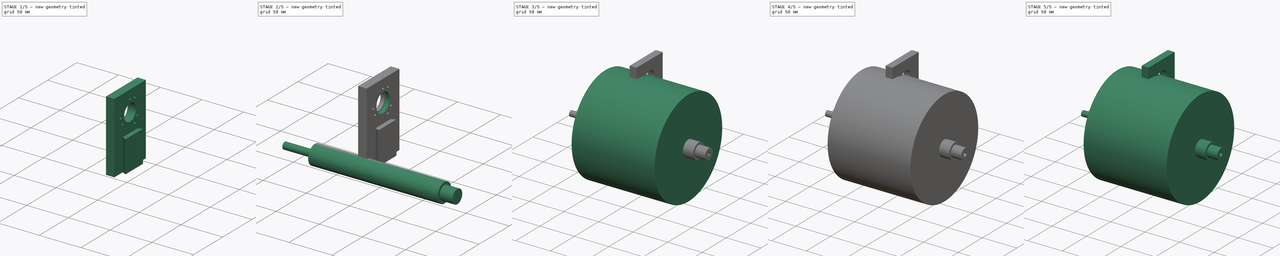
[diagram: build sequence overview — one tinted view per stage of 5, left to right]
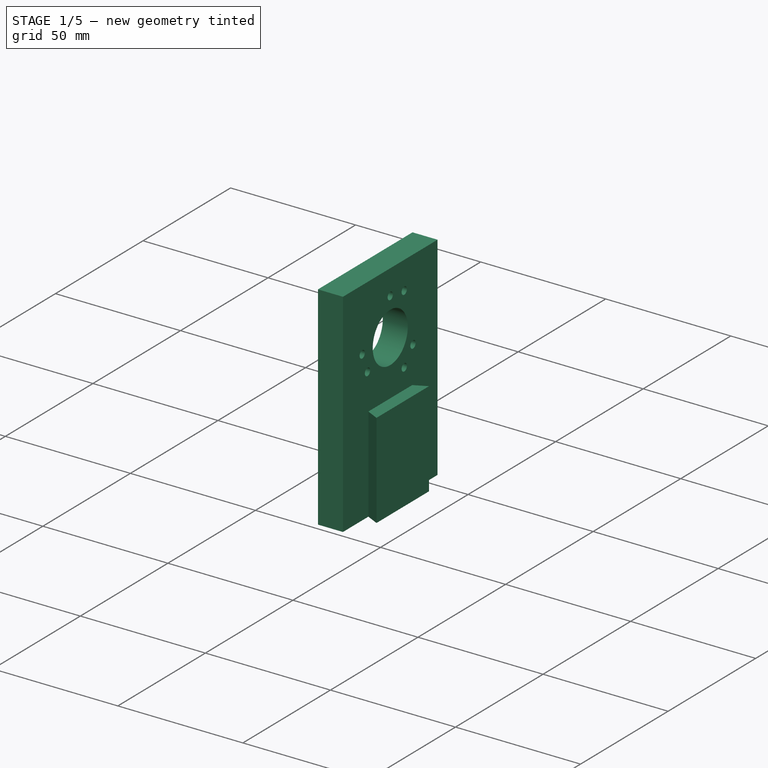
[diagram: stage 1 of 5 — iso view after this stage's code; geometry added in this stage tinted green]
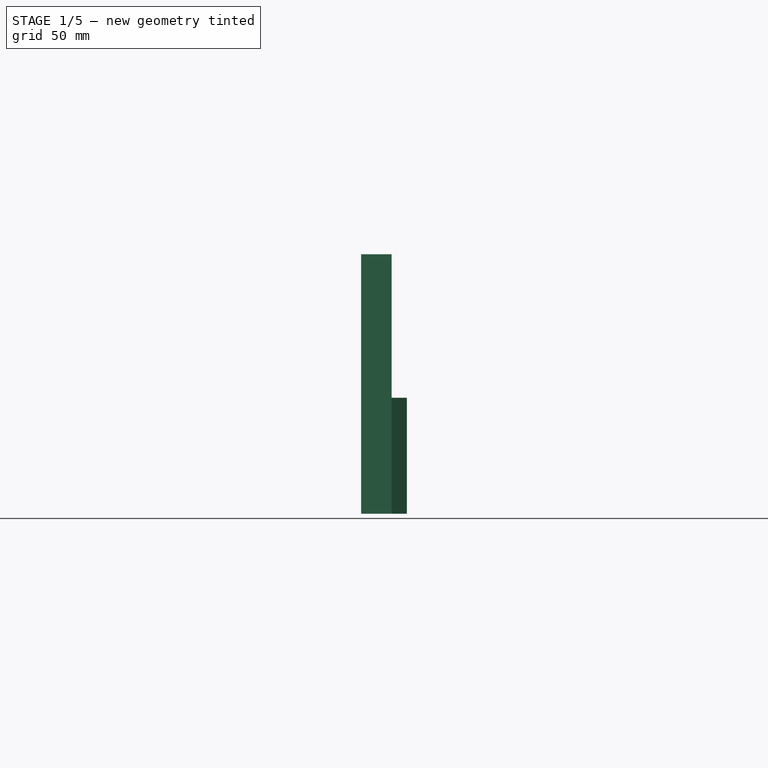
[diagram: stage 1 of 5 — front view after this stage's code; geometry added in this stage tinted green]
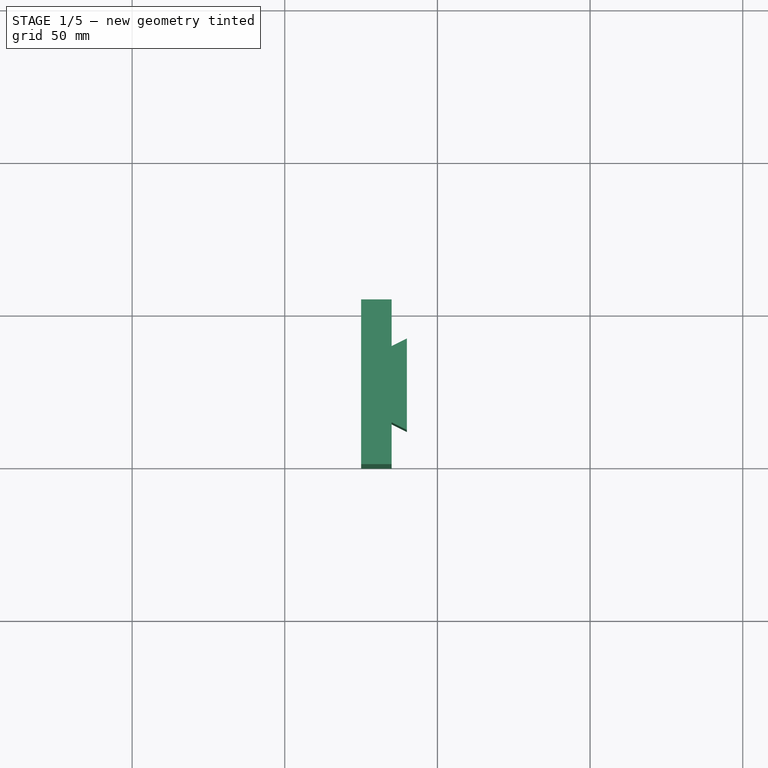
[diagram: stage 1 of 5 — top view after this stage's code; geometry added in this stage tinted green]
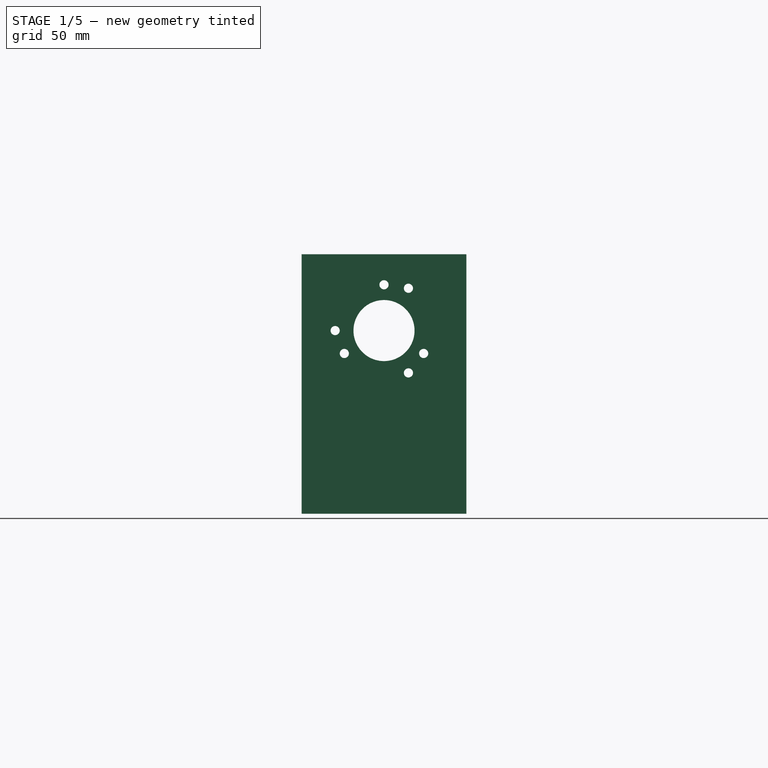
[diagram: stage 1 of 5 — right view after this stage's code; geometry added in this stage tinted green]
FCSTD DOCUMENT  (FreeCAD 0.17R13541 (Git))
Label: assembly
License: All rights reserved
LicenseURL: http://en.wikipedia.org/wiki/All_rights_reserved
objects: Sketcher::SketchObject×25, PartDesign::Pad×14, PartDesign::Pocket×11, App::Part×6, PartDesign::PolarPattern×2
note: 77 computed .brp shape members not serialized (recipe doc carries the construction recipe); baked Part::Feature solids carry a one-line shape summary decoded from their .brp

FEATURE [App::Part] Part002  label="axle"
  Group = -> [Sketch029,Pad016,Sketch028,Pad015,Pad017,Sketch026,Sketch027,Pocket012]
  License = CC BY 3.0
  LicenseURL = http://creativecommons.org/licenses/by/3.0/
  Origin = -> Origin002
  Placement = pos=(-120,27,60) rot=(0,0,1;-3.14159rad)
FEATURE [Sketcher::SketchObject] Sketch030
  AttachmentOffset = pos=(27,60,-25) rot=(0,0,1;0rad)
  MapMode = 5
  Placement = pos=(-25,27,60) rot=(0.57735,0.57735,0.57735;2.0944rad)
  Support = -> [YZ_Plane014]
  sketch-geometry (2):
    g0: Circle CenterX=0 CenterY=15 CenterZ=0 NormalX=0 NormalY=0 NormalZ=1 AngleXU=0 Radius=1.5
    g1: Circle CenterX=-16 CenterY=0 CenterZ=0 NormalX=0 NormalY=0 NormalZ=1 AngleXU=0 Radius=1.5
  constraints (6):
    c: DistanceX(g-1,g0) = 0
    c: DistanceY(g-1,g0) = 15
    c: Radius(g0) = 1.5
    c: Radius(g1) = 1.5
    c: Horizontal(g1,g-1)
    c: DistanceX(g1,g-1) = 16
FEATURE [Sketcher::SketchObject] Sketch031
  MapMode = 5
  Placement = pos=(0,0,0) rot=(0.57735,0.57735,0.57735;2.0944rad)
  Support = -> [YZ_Plane014]
  sketch-geometry (1):
    g0: Circle CenterX=27 CenterY=60 CenterZ=0 NormalX=0 NormalY=0 NormalZ=1 AngleXU=0 Radius=10
  constraints (3):
    c: Radius(g0) = 10
    c: DistanceX(g-1,g0) = 27
    c: DistanceY(g-1,g0) = 60
FEATURE [Sketcher::SketchObject] Sketch032
  MapMode = 5
  Support = -> [XY_Plane011]
  sketch-geometry (4):
    g0: LineSegment StartX=-15 StartY=0 StartZ=0 EndX=-25 EndY=0 EndZ=0
    g1: LineSegment StartX=-25 StartY=0 StartZ=0 EndX=-25 EndY=54 EndZ=0
    g2: LineSegment StartX=-25 StartY=54 StartZ=0 EndX=-15 EndY=54 EndZ=0
    g3: LineSegment StartX=-15 StartY=54 StartZ=0 EndX=-15 EndY=0 EndZ=0
  constraints (12):
    c: Coincident(g0,g1)
    c: Coincident(g1,g2)
    c: Coincident(g2,g3)
    c: Coincident(g3,g0)
    c: Horizontal(g0)
    c: Horizontal(g2)
    c: Vertical(g1)
    c: Vertical(g3)
    c: PointOnObject(g0,g-1)
    c: DistanceX(g0,g-1) = 15
    c: DistanceX(g1,g0) = 10
    c: DistanceY(g-1,g2) = 54
FEATURE [Sketcher::SketchObject] Sketch033
  AttachmentOffset = pos=(27,60,-25) rot=(0,0,1;0rad)
  MapMode = 5
  Placement = pos=(-25,27,60) rot=(0.57735,0.57735,0.57735;2.0944rad)
  Support = -> [YZ_Plane014]
  sketch-geometry (2):
    g0: Circle CenterX=0 CenterY=15 CenterZ=0 NormalX=0 NormalY=0 NormalZ=1 AngleXU=0 Radius=3
    g1: Circle CenterX=-16 CenterY=0 CenterZ=0 NormalX=0 NormalY=0 NormalZ=1 AngleXU=0 Radius=3
  constraints (6):
    c: DistanceX(g-1,g0) = 0
    c: DistanceY(g-1,g0) = 15
    c: Radius(g0) = 3
    c: Radius(g1) = 3
    c: Horizontal(g-1,g1)
    c: DistanceX(g1,g-1) = 16
FEATURE [Sketcher::SketchObject] Sketch034
  MapMode = 5
  Placement = pos=(0,0,0) rot=(0.57735,0.57735,0.57735;2.0944rad)
  Support = -> [YZ_Plane014]
  sketch-geometry (1):
    g0: Circle CenterX=27 CenterY=60 CenterZ=0 NormalX=0 NormalY=0 NormalZ=1 AngleXU=0 Radius=11
  constraints (3):
    c: Radius(g0) = 11
    c: DistanceX(g-1,g0) = 27
    c: DistanceY(g-1,g0) = 60
FEATURE [Sketcher::SketchObject] Sketch035
  MapMode = 5
  Support = -> [XY_Plane011]
  sketch-geometry (8):
    g0: LineSegment StartX=-15 StartY=0 StartZ=0 EndX=-15 EndY=14.5 EndZ=0
    g1: LineSegment StartX=-15 StartY=54 StartZ=0 EndX=-15 EndY=39.5 EndZ=0
    g2: LineSegment StartX=-10 StartY=42 StartZ=0 EndX=-10 EndY=12 EndZ=0
    g3: LineSegment StartX=-10 StartY=42 StartZ=0 EndX=-15 EndY=39.5 EndZ=0
    g4: LineSegment StartX=-15 StartY=14.5 StartZ=0 EndX=-10 EndY=12 EndZ=0
    g5: LineSegment StartX=-15 StartY=0 StartZ=0 EndX=-25 EndY=0 EndZ=0
    g6: LineSegment StartX=-25 StartY=0 StartZ=0 EndX=-25 EndY=54 EndZ=0
    g7: LineSegment StartX=-25 StartY=54 StartZ=0 EndX=-15 EndY=54 EndZ=0
  constraints (23):
    c: Vertical(g0)
    c: Vertical(g1)
    c: Vertical(g1,g0)
    c: Vertical(g2)
    c: DistanceY(g-1,g2) = 12
    c: DistanceX(g0,g2) = 5
    c: Coincident(g3,g2)
    c: Coincident(g3,g1)
    c: Coincident(g4,g0)
    c: Coincident(g4,g2)
    c: Coincident(g5,g6)
    c: Coincident(g6,g7)
    c: Horizontal(g5)
    c: Horizontal(g7)
    c: Vertical(g6)
    c: DistanceX(g5,g5) = 10
    c: DistanceX(g5,g0) = 0
    c: DistanceX(g7,g-1) = 15
    c: DistanceX(g1,g-1) = 15
    c: Coincident(g7,g1)
    c: Coincident(g5,g0)
    c: DistanceY(g0,g-1) = 0
    c: DistanceY(g-1,g1) = 54
FEATURE [PartDesign::Pad] Pad018
  Length = 38
  Length2 = 100
  Profile = -> Sketch035
  Type = 0
FEATURE [PartDesign::Pad] Pad019
  BaseFeature = -> Pad018
  Length = 85
  Length2 = 100
  Profile = -> Sketch032
  Type = 0
FEATURE [PartDesign::Pocket] Pocket013
  BaseFeature = -> Pad019
  Length = 5
  Length2 = 100
  Profile = -> Sketch031
  Type = 1
FEATURE [PartDesign::Pocket] Pocket014
  BaseFeature = -> Pocket013
  Length = 5
  Length2 = 100
  Profile = -> Sketch030
  Reversed = true
  Type = 1
FEATURE [PartDesign::PolarPattern] PolarPattern
  Angle = 360
  Axis = -> Sketch030 [N_Axis]
  BaseFeature = -> Pocket014
  Occurrences = 3
  Originals = -> [Pocket014]
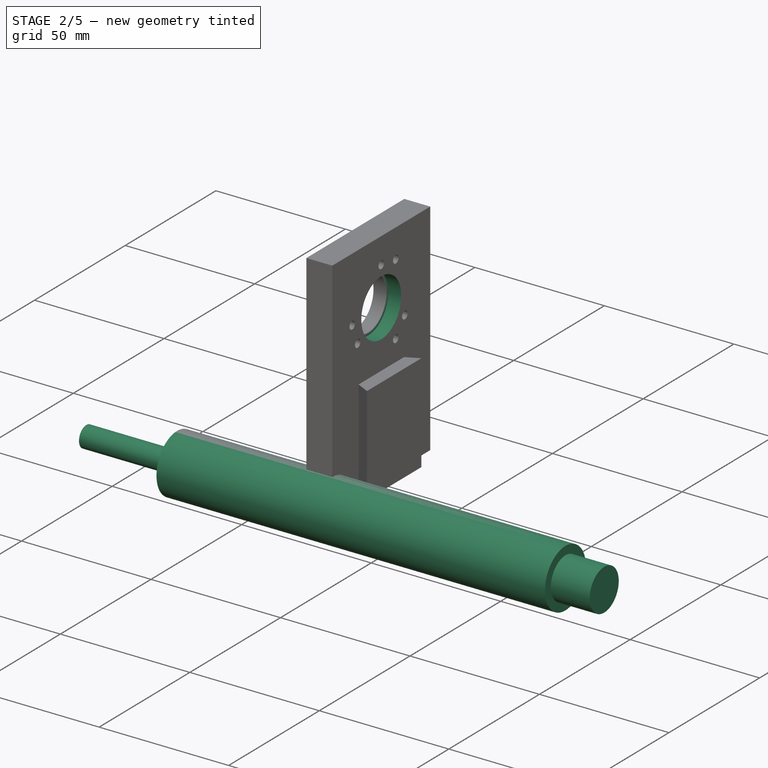
[diagram: stage 2 of 5 — iso view after this stage's code; geometry added in this stage tinted green]
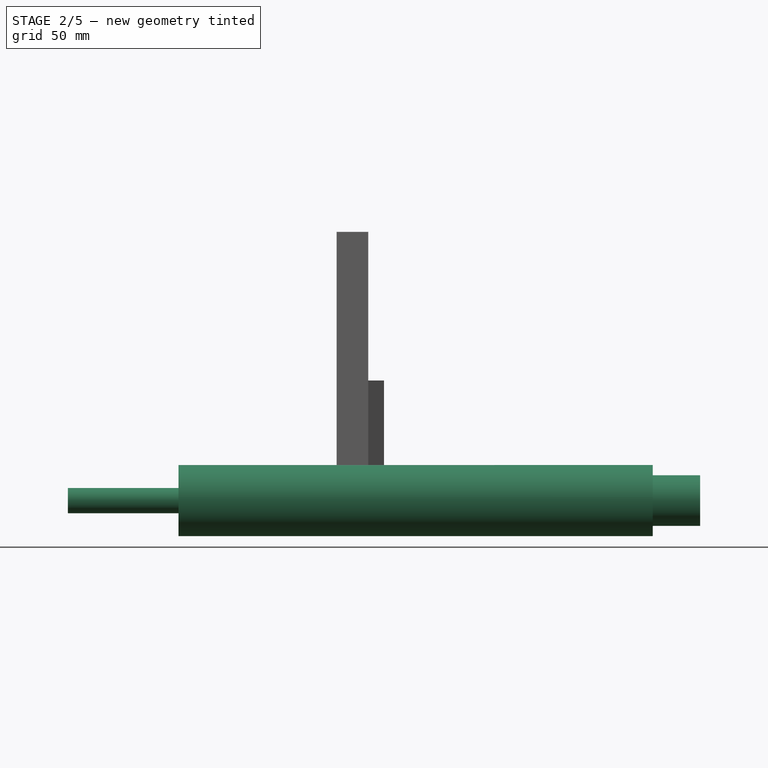
[diagram: stage 2 of 5 — front view after this stage's code; geometry added in this stage tinted green]
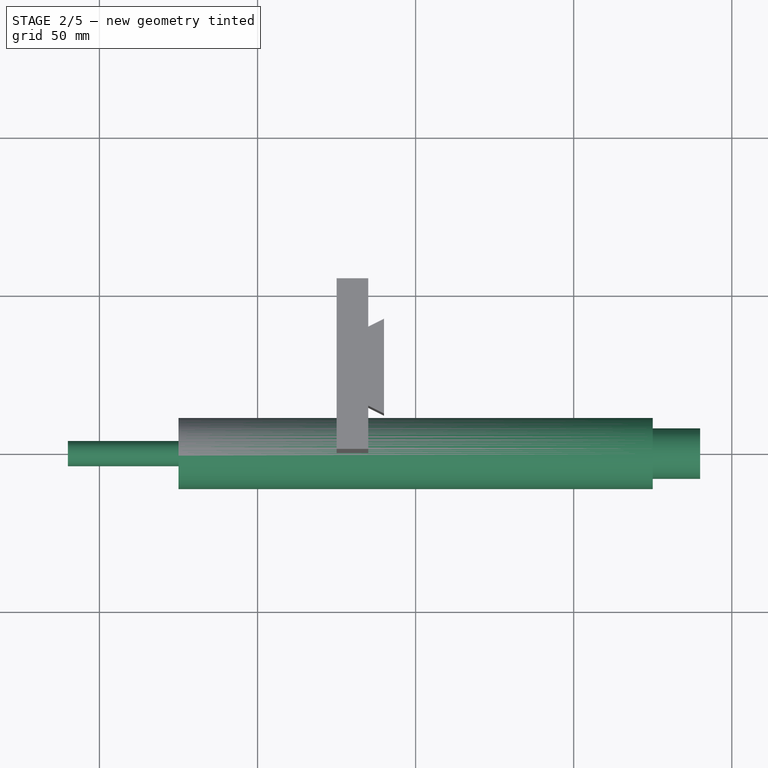
[diagram: stage 2 of 5 — top view after this stage's code; geometry added in this stage tinted green]
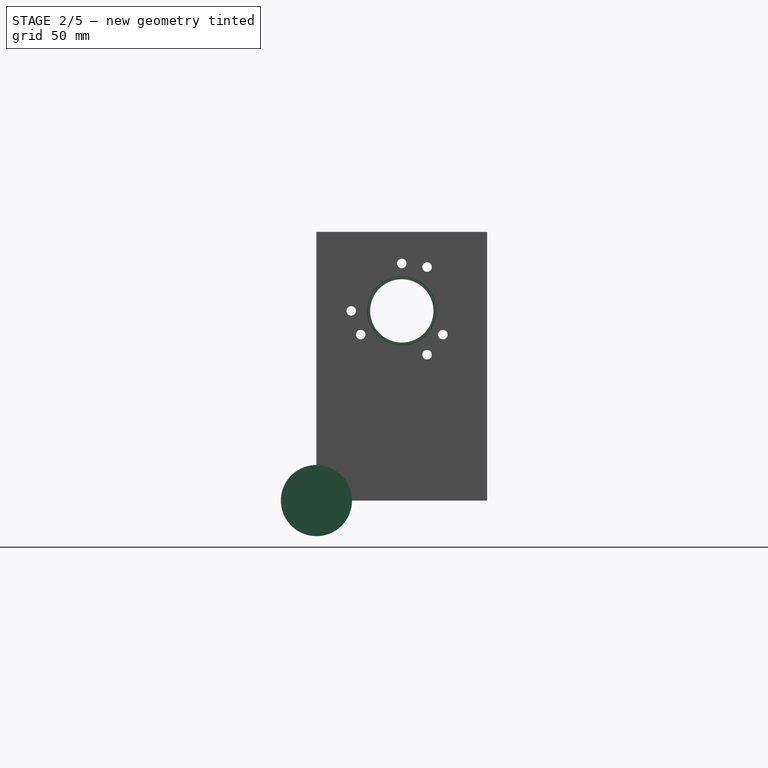
[diagram: stage 2 of 5 — right view after this stage's code; geometry added in this stage tinted green]
FEATURE [App::Part] Part005  label="roller"
  Group = -> [Sketch025,Pad014]
  License = CC BY 3.0
  LicenseURL = http://creativecommons.org/licenses/by/3.0/
  Origin = -> Origin005
  Placement = pos=(-120,27,60) rot=(0,0,1;0rad)
FEATURE [Sketcher::SketchObject] Sketch026
  MapMode = 5
  Placement = pos=(0,0,0) rot=(0.57735,0.57735,0.57735;2.0944rad)
  Support = -> [YZ_Plane013]
  sketch-geometry (1):
    g0: Circle CenterX=0 CenterY=0 CenterZ=0 NormalX=0 NormalY=0 NormalZ=1 AngleXU=0 Radius=4
  constraints (2):
    c: Coincident(g0,g-1)
    c: Radius(g0) = 4
FEATURE [PartDesign::Pad] Pad015
  Length = 110
  Length2 = 110
  Placement = pos=(0,0,0) rot=(0.57735,0.57735,0.57735;2.0944rad)
  Profile = -> Sketch026
  Reversed = true
  Type = 0
FEATURE [Sketcher::SketchObject] Sketch027
  MapMode = 5
  Placement = pos=(0,0,0) rot=(0.57735,0.57735,0.57735;2.0944rad)
  Support = -> [YZ_Plane013]
  sketch-geometry (1):
    g0: Circle CenterX=0 CenterY=0 CenterZ=0 NormalX=0 NormalY=0 NormalZ=1 AngleXU=0 Radius=11.25
  constraints (2):
    c: Coincident(g0,g-1)
    c: Radius(g0) = 11.25
FEATURE [PartDesign::Pad] Pad016
  BaseFeature = -> Pad015
  Length = 150
  Length2 = 100
  Midplane = true
  Placement = pos=(0,0,0) rot=(0.57735,0.57735,0.57735;2.0944rad)
  Profile = -> Sketch027
  Type = 0
FEATURE [Sketcher::SketchObject] Sketch028
  AttachmentOffset = pos=(0,0,90) rot=(0,0,1;0rad)
  MapMode = 5
  Placement = pos=(90,-1e-11,1e-11) rot=(0.57735,0.57735,0.57735;2.0944rad)
  Support = -> [YZ_Plane013]
  sketch-geometry (4):
    g0: ArcOfCircle CenterX=0 CenterY=0 CenterZ=0 NormalX=0 NormalY=0 NormalZ=1 AngleXU=0 Radius=3 StartAngle=6.24722 EndAngle=10.8483
    g1: LineSegment StartX=2.99806 StartY=-0.107877 StartZ=0 EndX=3.63799 EndY=-0.877715 EndZ=0
    g2: LineSegment StartX=-0.44036 StartY=-2.9675 StartZ=0 EndX=0.198883 EndY=-3.73651 EndZ=0
    g3: LineSegment StartX=0.198883 StartY=-3.73651 StartZ=0 EndX=3.63799 EndY=-0.877715 EndZ=0
  constraints (11):
    c: Coincident(g0,g-1)
    c: Radius(g0) = 3
    c: Angle(g0) = 4.60104
    c: Coincident(g3,g1)
    c: Coincident(g3,g2)
    c: Distance(g2) = 1
    c: Perpendicular(g3,g1)
    c: Perpendicular(g3,g2)
    c: Coincident(g2,g0)
    c: PointOnObject(g1,g0)
    c: Coincident(g1,g0)
FEATURE [Sketcher::SketchObject] Sketch029
  MapMode = 5
  Placement = pos=(0,0,0) rot=(0.57735,0.57735,0.57735;2.0944rad)
  Support = -> [YZ_Plane013]
  sketch-geometry (1):
    g0: Circle CenterX=0 CenterY=0 CenterZ=0 NormalX=0 NormalY=0 NormalZ=1 AngleXU=0 Radius=8
  constraints (2):
    c: Coincident(g0,g-1)
    c: Radius(g0) = 8
FEATURE [PartDesign::Pad] Pad017
  BaseFeature = -> Pad016
  Length = 90
  Length2 = 100
  Placement = pos=(0,0,0) rot=(0.57735,0.57735,0.57735;2.0944rad)
  Profile = -> Sketch029
  Type = 0
FEATURE [PartDesign::Pocket] Pocket002
  BaseFeature = -> PolarPattern
  Length = 5
  Length2 = 100
  Profile = -> Sketch033
  Reversed = true
  Type = 0
FEATURE [PartDesign::PolarPattern] PolarPattern001
  Angle = 360
  Axis = -> Sketch033 [N_Axis]
  BaseFeature = -> Pocket002
  Occurrences = 3
  Originals = -> [Pocket002]
FEATURE [PartDesign::Pocket] Pocket003
  BaseFeature = -> PolarPattern001
  Length = 20
  Length2 = 100
  Profile = -> Sketch034
  Type = 0
FEATURE [App::Part] Part004  label="vertical slider encoder "
  Group = -> [PolarPattern,PolarPattern001,Sketch032,Sketch034,Sketch035,Sketch033,Sketch031,Sketch030,Pocket013,Pocket002,Pad019,Pocket014,Pad018,Pocket003]
  License = CC BY 3.0
  LicenseURL = http://creativecommons.org/licenses/by/3.0/
  Origin = -> Origin004
  Placement = pos=(-230,54,0) rot=(0,0,1;-3.14159rad)
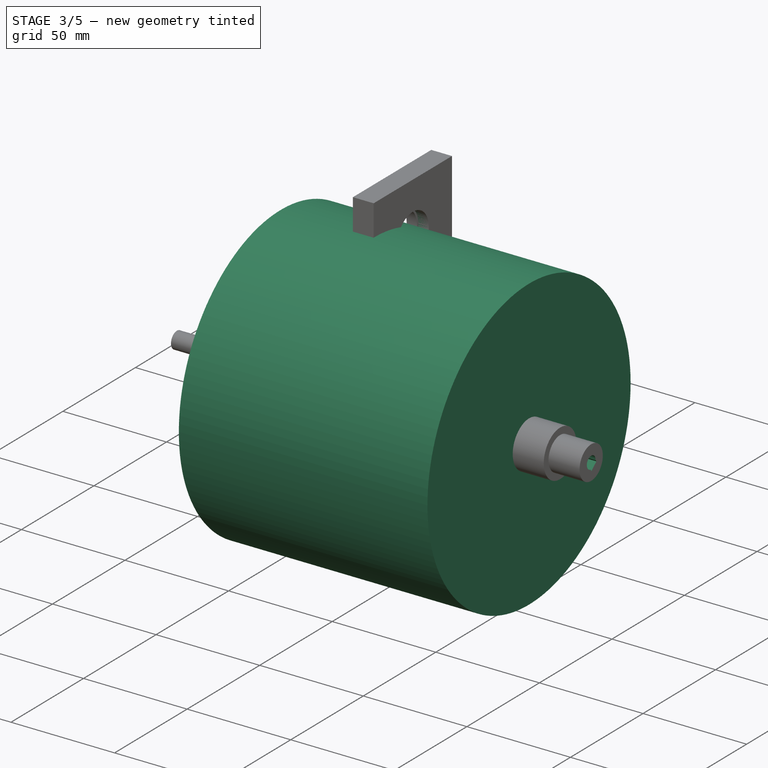
[diagram: stage 3 of 5 — iso view after this stage's code; geometry added in this stage tinted green]
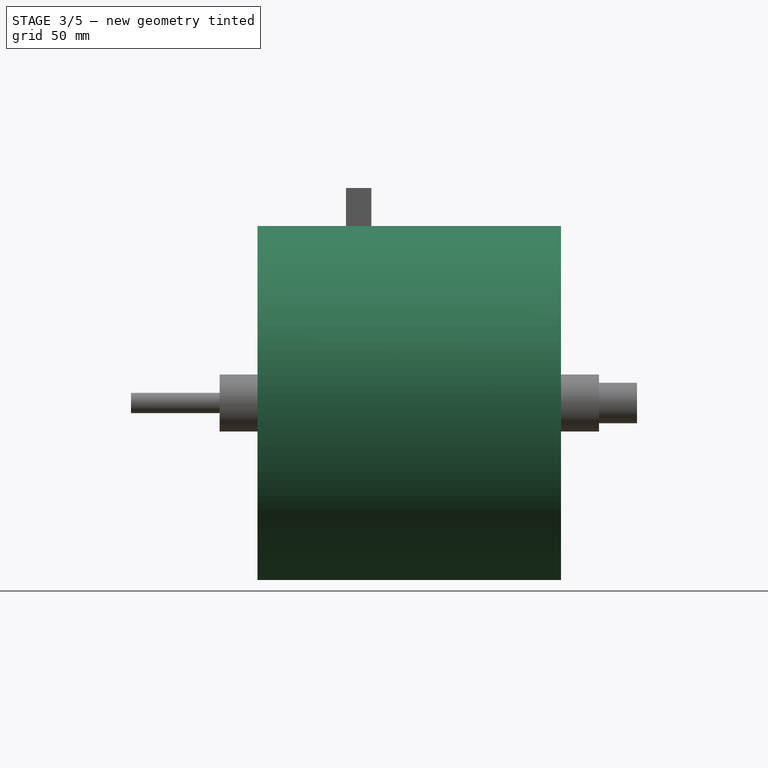
[diagram: stage 3 of 5 — front view after this stage's code; geometry added in this stage tinted green]
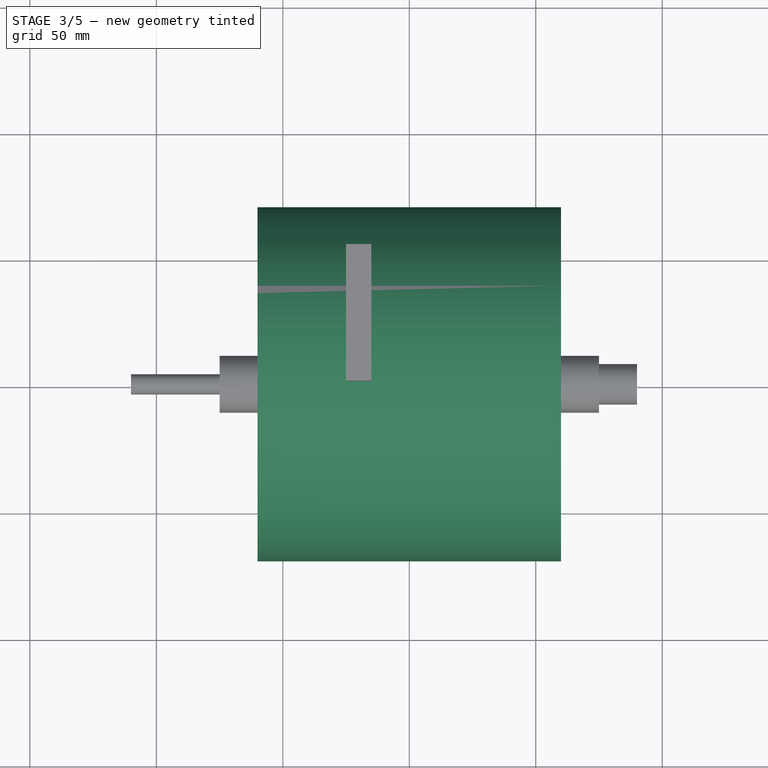
[diagram: stage 3 of 5 — top view after this stage's code; geometry added in this stage tinted green]
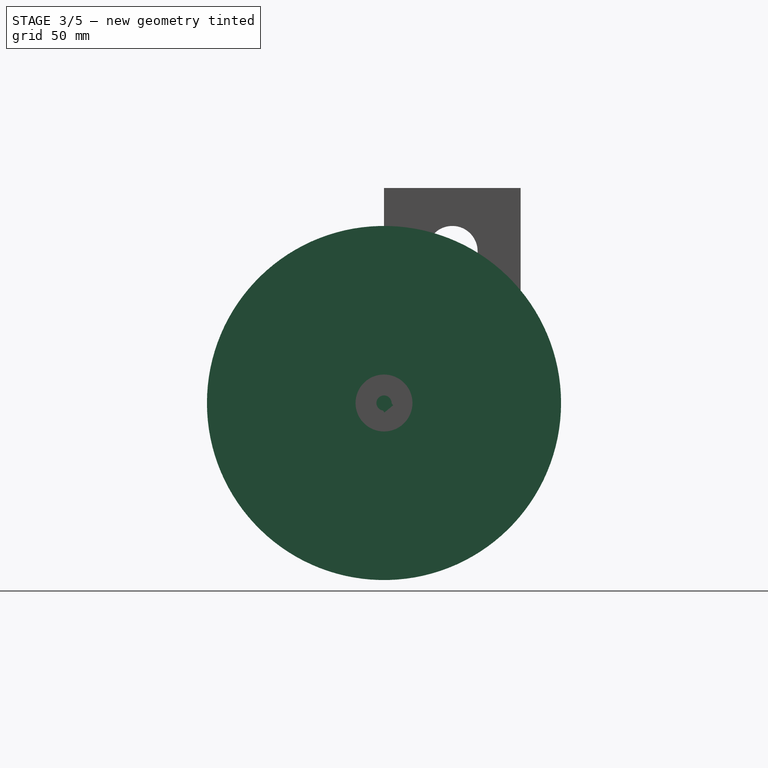
[diagram: stage 3 of 5 — right view after this stage's code; geometry added in this stage tinted green]
FEATURE [App::Part] Part003  label="horizontal slider left"
  Group = -> [Sketch012,Pocket005,Pad007,Sketch011,Sketch014,Pad008,Pad009,Sketch015,Sketch013,Pocket004]
  License = CC BY 3.0
  LicenseURL = http://creativecommons.org/licenses/by/3.0/
  Origin = -> Origin003
  Placement = pos=(-230,54,0) rot=(0,0,1;-3.14159rad)
FEATURE [Sketcher::SketchObject] Sketch022
  AttachmentOffset = pos=(0,0,80) rot=(0,0,1;0rad)
  MapMode = 5
  Placement = pos=(0,0,80) rot=(0,0,1;0rad)
  sketch-geometry (1):
    g0: Circle CenterX=-20 CenterY=27 CenterZ=0 NormalX=0 NormalY=0 NormalZ=1 AngleXU=0 Radius=2
  constraints (3):
    c: DistanceX(g0,g-1) = 20
    c: DistanceY(g-1,g0) = 27
    c: Radius(g0) = 2
FEATURE [Sketcher::SketchObject] Sketch023
  MapMode = 5
  sketch-geometry (4):
    g0: LineSegment StartX=-15 StartY=0 StartZ=0 EndX=-25 EndY=0 EndZ=0
    g1: LineSegment StartX=-25 StartY=0 StartZ=0 EndX=-25 EndY=54 EndZ=0
    g2: LineSegment StartX=-25 StartY=54 StartZ=0 EndX=-15 EndY=54 EndZ=0
    g3: LineSegment StartX=-15 StartY=54 StartZ=0 EndX=-15 EndY=0 EndZ=0
  constraints (12):
    c: Coincident(g0,g1)
    c: Coincident(g1,g2)
    c: Coincident(g2,g3)
    c: Coincident(g3,g0)
    c: Horizontal(g0)
    c: Horizontal(g2)
    c: Vertical(g1)
    c: Vertical(g3)
    c: PointOnObject(g0,g-1)
    c: DistanceX(g0,g-1) = 15
    c: DistanceX(g1,g0) = 10
    c: DistanceY(g-1,g2) = 54
FEATURE [Sketcher::SketchObject] Sketch024
  MapMode = 5
  Placement = pos=(0,0,0) rot=(0.57735,0.57735,0.57735;2.0944rad)
  sketch-geometry (1):
    g0: Circle CenterX=27 CenterY=60 CenterZ=0 NormalX=0 NormalY=0 NormalZ=1 AngleXU=0 Radius=11
  constraints (3):
    c: Radius(g0) = 11
    c: DistanceX(g-1,g0) = 27
    c: DistanceY(g-1,g0) = 60
FEATURE [Sketcher::SketchObject] Sketch001
  MapMode = 5
  sketch-geometry (8):
    g0: LineSegment StartX=-15 StartY=0 StartZ=0 EndX=-15 EndY=14.5 EndZ=0
    g1: LineSegment StartX=-15 StartY=54 StartZ=0 EndX=-15 EndY=39.5 EndZ=0
    g2: LineSegment StartX=-10 StartY=42 StartZ=0 EndX=-10 EndY=12 EndZ=0
    g3: LineSegment StartX=-10 StartY=42 StartZ=0 EndX=-15 EndY=39.5 EndZ=0
    g4: LineSegment StartX=-15 StartY=14.5 StartZ=0 EndX=-10 EndY=12 EndZ=0
    g5: LineSegment StartX=-15 StartY=0 StartZ=0 EndX=-25 EndY=0 EndZ=0
    g6: LineSegment StartX=-25 StartY=0 StartZ=0 EndX=-25 EndY=54 EndZ=0
    g7: LineSegment StartX=-25 StartY=54 StartZ=0 EndX=-15 EndY=54 EndZ=0
  constraints (23):
    c: Vertical(g0)
    c: Vertical(g1)
    c: Vertical(g1,g0)
    c: Vertical(g2)
    c: DistanceY(g-1,g2) = 12
    c: DistanceX(g0,g2) = 5
    c: Coincident(g3,g2)
    c: Coincident(g3,g1)
    c: Coincident(g4,g0)
    c: Coincident(g4,g2)
    c: Coincident(g5,g6)
    c: Coincident(g6,g7)
    c: Horizontal(g5)
    c: Horizontal(g7)
    c: Vertical(g6)
    c: DistanceX(g5,g5) = 10
    c: DistanceX(g5,g0) = 0
    c: DistanceX(g7,g-1) = 15
    c: DistanceX(g1,g-1) = 15
    c: Coincident(g7,g1)
    c: Coincident(g5,g0)
    c: DistanceY(g0,g-1) = 0
    c: DistanceY(g-1,g1) = 54
FEATURE [PartDesign::Pad] Pad012
  Length = 38
  Length2 = 100
  Profile = -> Sketch001
  Type = 0
FEATURE [PartDesign::Pad] Pad013
  BaseFeature = -> Pad012
  Length = 80
  Length2 = 100
  Profile = -> Sketch023
  Type = 0
FEATURE [PartDesign::Pocket] Pocket010
  BaseFeature = -> Pad013
  Length = 5
  Length2 = 100
  Profile = -> Sketch024
  Type = 1
FEATURE [App::Part] Part001  label="vertical slider with bearing"
  Group = -> [Sketch022,Pad012,Pocket010,Pad013,Sketch001,Sketch023,Sketch024,Pocket011]
  License = CC BY 3.0
  LicenseURL = http://creativecommons.org/licenses/by/3.0/
  Origin = -> Origin001
FEATURE [Sketcher::SketchObject] Sketch025
  MapMode = 5
  Placement = pos=(0,0,0) rot=(0.57735,0.57735,0.57735;2.0944rad)
  Support = -> [YZ_Plane012]
  sketch-geometry (2):
    g0: Circle CenterX=0 CenterY=0 CenterZ=0 NormalX=0 NormalY=0 NormalZ=1 AngleXU=0 Radius=70
    g1: Circle CenterX=0 CenterY=0 CenterZ=0 NormalX=0 NormalY=0 NormalZ=1 AngleXU=0 Radius=11
  constraints (4):
    c: Coincident(g0,g-1)
    c: Radius(g0) = 70
    c: Coincident(g1,g-1)
    c: Radius(g1) = 11
FEATURE [PartDesign::Pad] Pad014
  Length = 120
  Length2 = 100
  Midplane = true
  Placement = pos=(0,0,0) rot=(0.57735,0.57735,0.57735;2.0944rad)
  Profile = -> Sketch025
  Type = 0
FEATURE [PartDesign::Pocket] Pocket012
  BaseFeature = -> Pad017
  Length = 18
  Length2 = 100
  Placement = pos=(0,0,0) rot=(0.57735,0.57735,0.57735;2.0944rad)
  Profile = -> Sketch028
  Type = 0
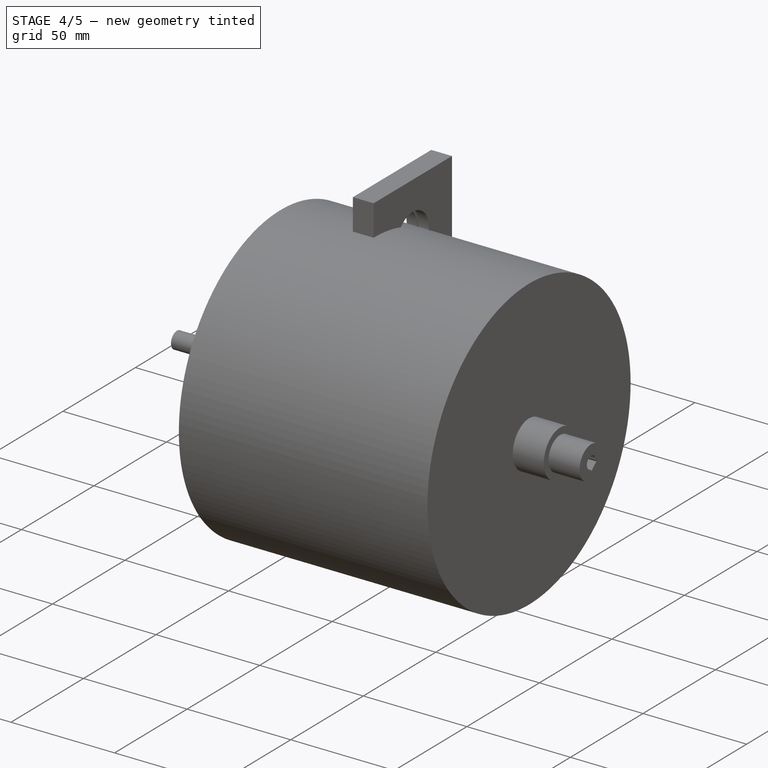
[diagram: stage 4 of 5 — iso view after this stage's code; geometry added in this stage tinted green]
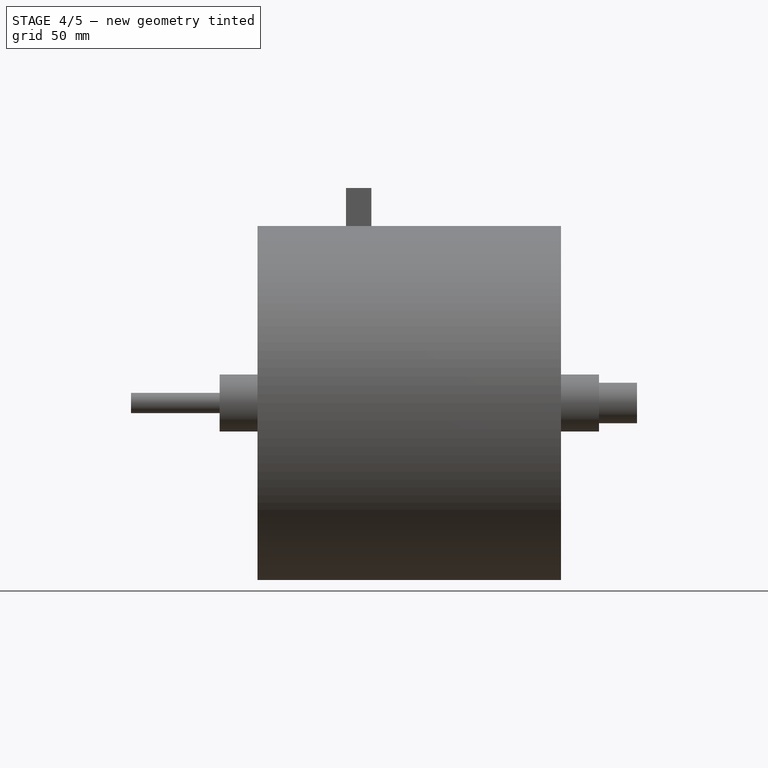
[diagram: stage 4 of 5 — front view after this stage's code; geometry added in this stage tinted green]
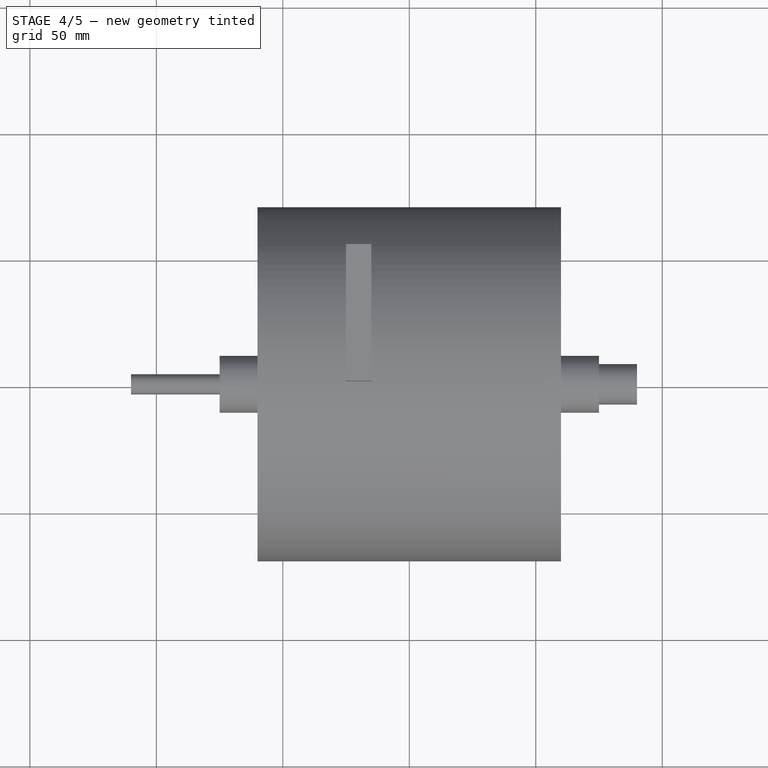
[diagram: stage 4 of 5 — top view after this stage's code; geometry added in this stage tinted green]
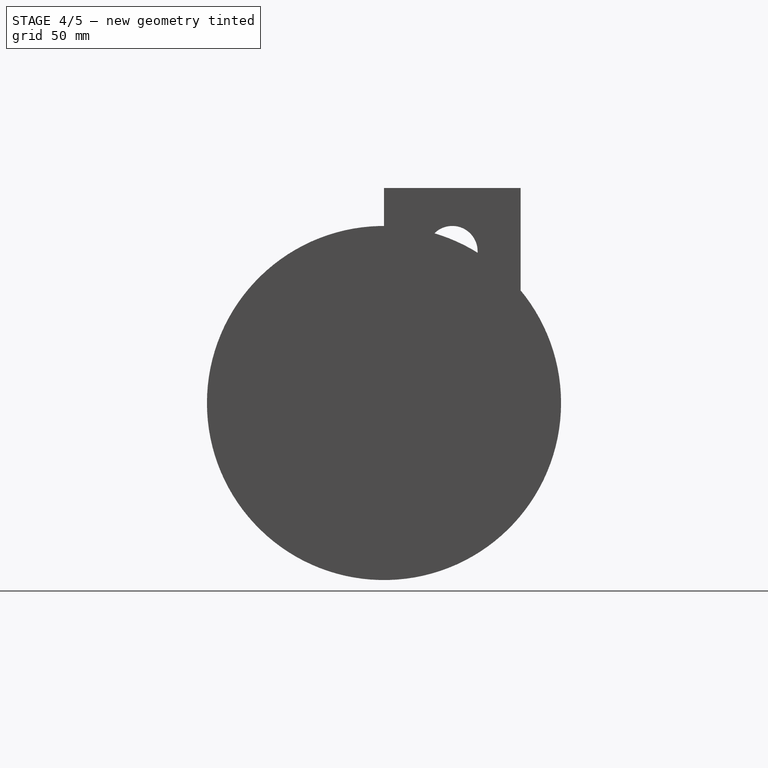
[diagram: stage 4 of 5 — right view after this stage's code; geometry added in this stage tinted green]
FEATURE [App::Part] Part  label="horizontal slider right"
  Group = -> [Sketch003,Pad,Pocket,Sketch,Sketch004,Sketch005,Pad001,Sketch002,Pad002,Pocket001]
  License = CC BY 3.0
  LicenseURL = http://creativecommons.org/licenses/by/3.0/
  Origin = -> Origin
FEATURE [Sketcher::SketchObject] Sketch011
  MapMode = 5
  Placement = pos=(0,0,0) rot=(0.57735,0.57735,0.57735;2.0944rad)
  Support = -> [YZ_Plane007]
  sketch-geometry (1):
    g0: Circle CenterX=27 CenterY=27.5 CenterZ=0 NormalX=0 NormalY=0 NormalZ=1 AngleXU=0 Radius=5
  constraints (3):
    c: Radius(g0) = 5
    c: DistanceX(g-1,g0) = 27
    c: DistanceY(g-1,g0) = 27.5
FEATURE [Sketcher::SketchObject] Sketch012
  MapMode = 5
  Support = -> [XY_Plane006]
  sketch-geometry (8):
    g0: LineSegment StartX=26 StartY=46 StartZ=0 EndX=36 EndY=46 EndZ=0
    g1: LineSegment StartX=36 StartY=46 StartZ=0 EndX=36 EndY=8 EndZ=0
    g2: LineSegment StartX=36 StartY=8 StartZ=0 EndX=26 EndY=8 EndZ=0
    g3: LineSegment StartX=26 StartY=8 StartZ=0 EndX=26 EndY=46 EndZ=0
    g4: LineSegment StartX=28 StartY=43.6727 StartZ=0 EndX=34 EndY=43.6727 EndZ=0
    g5: LineSegment StartX=34 StartY=43.6727 StartZ=0 EndX=34 EndY=10.1592 EndZ=0
    g6: LineSegment StartX=34 StartY=10.1592 StartZ=0 EndX=28 EndY=10.1592 EndZ=0
    g7: LineSegment StartX=28 StartY=10.1592 StartZ=0 EndX=28 EndY=43.6727 EndZ=0
  constraints (22):
    c: Coincident(g0,g1)
    c: Coincident(g1,g2)
    c: Coincident(g2,g3)
    c: Coincident(g3,g0)
    c: Horizontal(g0)
    c: Horizontal(g2)
    c: Vertical(g1)
    c: Vertical(g3)
    c: DistanceY(g-1,g2) = 8
    c: DistanceY(g-1,g0) = 46
    c: DistanceX(g-1,g2) = 26
    c: DistanceX(g0,g1) = 10
    c: Coincident(g4,g5)
    c: Coincident(g5,g6)
    c: Coincident(g6,g7)
    c: Coincident(g7,g4)
    c: Horizontal(g4)
    c: Horizontal(g6)
    c: Vertical(g5)
    c: Vertical(g7)
    c: DistanceX(g2,g6) = 2
    c: DistanceX(g4,g0) = 2
FEATURE [Sketcher::SketchObject] Sketch013
  MapMode = 5
  Support = -> [XY_Plane006]
  sketch-geometry (8):
    g0: LineSegment StartX=0 StartY=0 StartZ=0 EndX=58 EndY=0 EndZ=0
    g1: LineSegment StartX=58 StartY=0 StartZ=0 EndX=58 EndY=54 EndZ=0
    g2: LineSegment StartX=58 StartY=54 StartZ=0 EndX=0 EndY=54 EndZ=0
    g3: LineSegment StartX=0 StartY=54 StartZ=0 EndX=0 EndY=0 EndZ=0
    g4: LineSegment StartX=26 StartY=46 StartZ=0 EndX=36 EndY=46 EndZ=0
    g5: LineSegment StartX=36 StartY=46 StartZ=0 EndX=36 EndY=8 EndZ=0
    g6: LineSegment StartX=36 StartY=8 StartZ=0 EndX=26 EndY=8 EndZ=0
    g7: LineSegment StartX=26 StartY=8 StartZ=0 EndX=26 EndY=46 EndZ=0
  constraints (23):
    c: Coincident(g0,g1)
    c: Coincident(g1,g2)
    c: Coincident(g2,g3)
    c: Coincident(g3,g0)
    c: Horizontal(g0)
    c: Horizontal(g2)
    c: Vertical(g1)
    c: Vertical(g3)
    c: Coincident(g0,g-1)
    c: Distance(g3) = 54
    c: Distance(g2) = 58
    c: Coincident(g4,g5)
    c: Coincident(g5,g6)
    c: Coincident(g6,g7)
    c: Coincident(g7,g4)
    c: Horizontal(g4)
    c: Horizontal(g6)
    c: Vertical(g5)
    c: Vertical(g7)
    c: DistanceX(g-1,g6) = 26
    c: DistanceX(g6,g5) = 10
    c: DistanceY(g-1,g4) = 46
    c: DistanceY(g-1,g6) = 8
FEATURE [Sketcher::SketchObject] Sketch014
  MapMode = 5
  Placement = pos=(0,0,0) rot=(0.57735,0.57735,0.57735;2.0944rad)
  Support = -> [YZ_Plane007]
  sketch-geometry (1):
    g0: Circle CenterX=27 CenterY=27.5 CenterZ=0 NormalX=0 NormalY=0 NormalZ=1 AngleXU=0 Radius=3
  constraints (3):
    c: DistanceX(g-1,g0) = 27
    c: DistanceY(g-1,g0) = 27.5
    c: Radius(g0) = 3
FEATURE [PartDesign::Pad] Pad008
  Length = 15
  Length2 = 100
  Profile = -> Sketch013
  Type = 0
FEATURE [Sketcher::SketchObject] Sketch015
  MapMode = 5
  Support = -> [XY_Plane006]
  sketch-geometry (8):
    g0: LineSegment StartX=-15 StartY=0 StartZ=0 EndX=-15 EndY=14.5 EndZ=0
    g1: LineSegment StartX=-15 StartY=54 StartZ=0 EndX=-15 EndY=39.5 EndZ=0
    g2: LineSegment StartX=-10 StartY=42 StartZ=0 EndX=-10 EndY=12 EndZ=0
    g3: LineSegment StartX=-10 StartY=42 StartZ=0 EndX=-15 EndY=39.5 EndZ=0
    g4: LineSegment StartX=-15 StartY=14.5 StartZ=0 EndX=-10 EndY=12 EndZ=0
    g5: LineSegment StartX=0 StartY=0 StartZ=0 EndX=-15 EndY=0 EndZ=0
    g6: LineSegment StartX=-15 StartY=54 StartZ=0 EndX=0 EndY=54 EndZ=0
    g7: LineSegment StartX=0 StartY=54 StartZ=0 EndX=0 EndY=0 EndZ=0
  constraints (18):
    c: Vertical(g0)
    c: Vertical(g1)
    c: Vertical(g1,g0)
    c: Vertical(g2)
    c: DistanceY(g-1,g2) = 12
    c: DistanceX(g0,g2) = 5
    c: Coincident(g3,g2)
    c: Coincident(g3,g1)
    c: Coincident(g4,g0)
    c: Coincident(g4,g2)
    c: DistanceX(g1,g-1) = 15
    c: DistanceY(g0,g-1) = 0
    c: Coincident(g6,g7)
    c: Coincident(g7,g5)
    c: Horizontal(g5)
    c: Horizontal(g6)
    c: Vertical(g7)
    c: Coincident(g5,g-1)
FEATURE [PartDesign::Pad] Pad009
  BaseFeature = -> Pad008
  Length = 40
  Length2 = 100
  Profile = -> Sketch015
  Type = 0
FEATURE [PartDesign::Pad] Pad007
  BaseFeature = -> Pad009
  Length = 10
  Length2 = 100
  Profile = -> Sketch012
  Type = 0
FEATURE [PartDesign::Pocket] Pocket005
  BaseFeature = -> Pad007
  Length = 5
  Length2 = 100
  Profile = -> Sketch011
  Type = 0
FEATURE [PartDesign::Pocket] Pocket004
  BaseFeature = -> Pocket005
  Length = 10
  Length2 = 100
  Profile = -> Sketch014
  Type = 0
FEATURE [PartDesign::Pocket] Pocket011
  BaseFeature = -> Pocket010
  Length = 10
  Length2 = 100
  Profile = -> Sketch022
  Type = 0
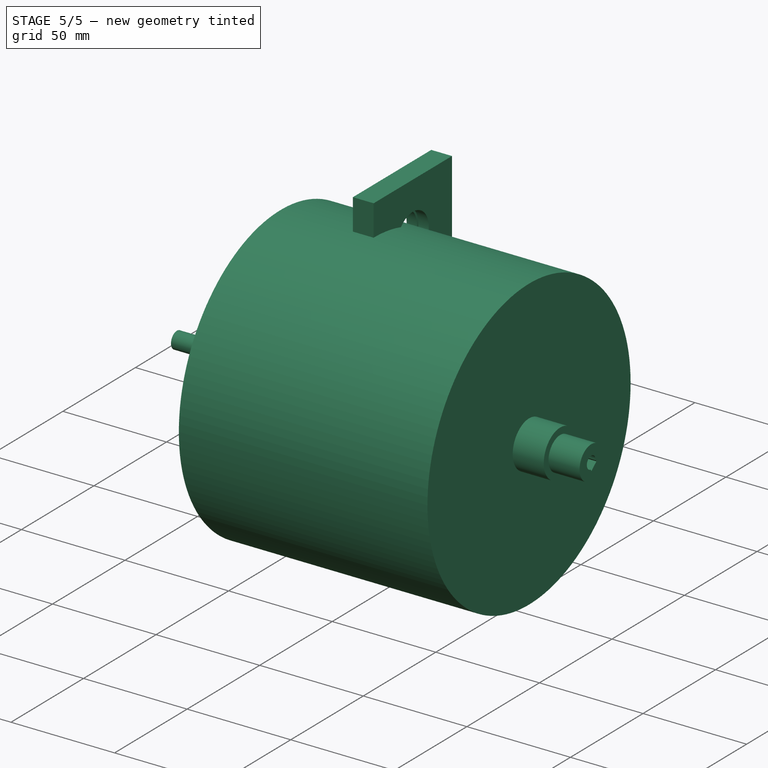
[diagram: stage 5 of 5 — iso view after this stage's code; geometry added in this stage tinted green]
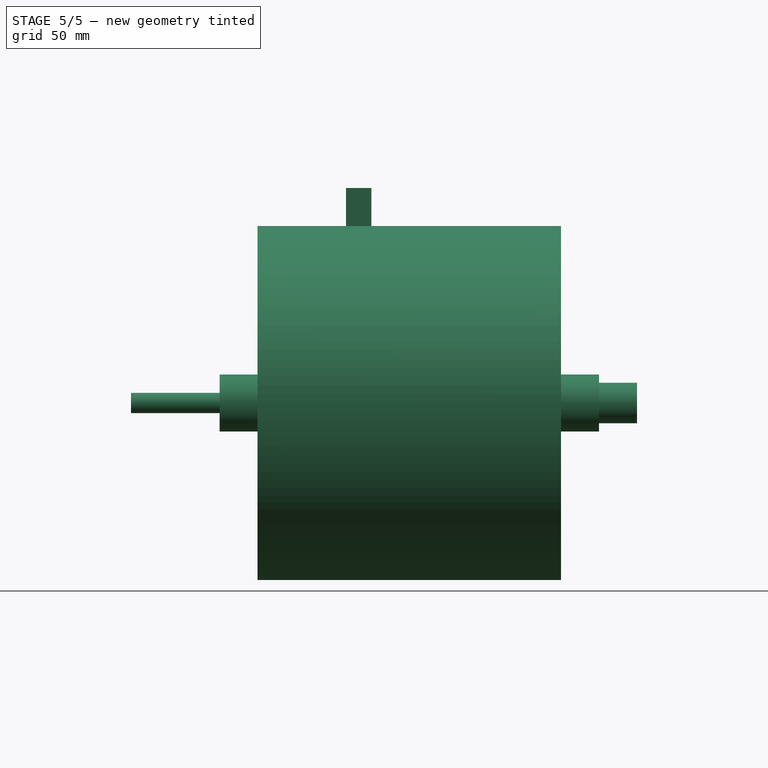
[diagram: stage 5 of 5 — front view after this stage's code; geometry added in this stage tinted green]
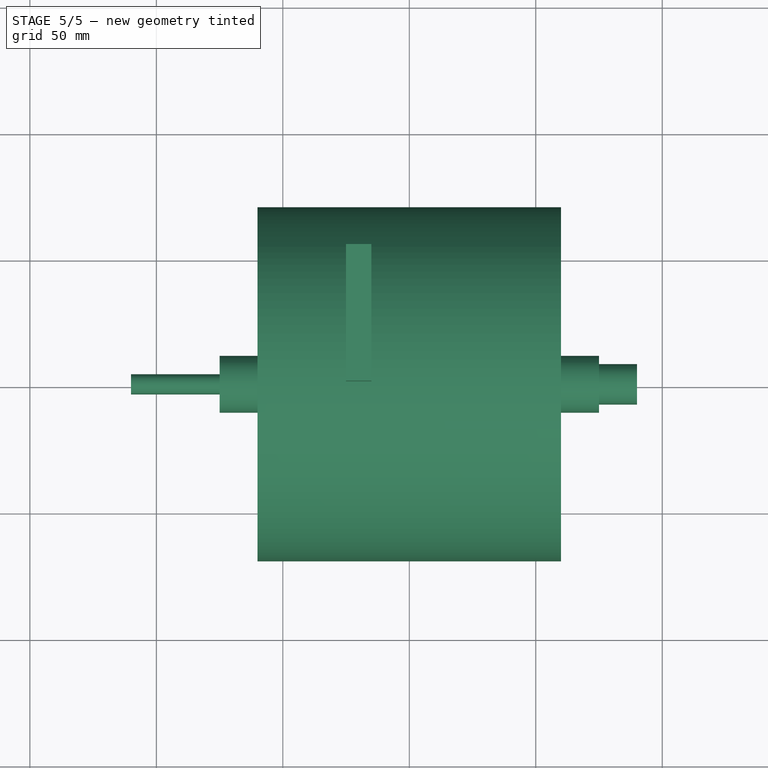
[diagram: stage 5 of 5 — top view after this stage's code; geometry added in this stage tinted green]
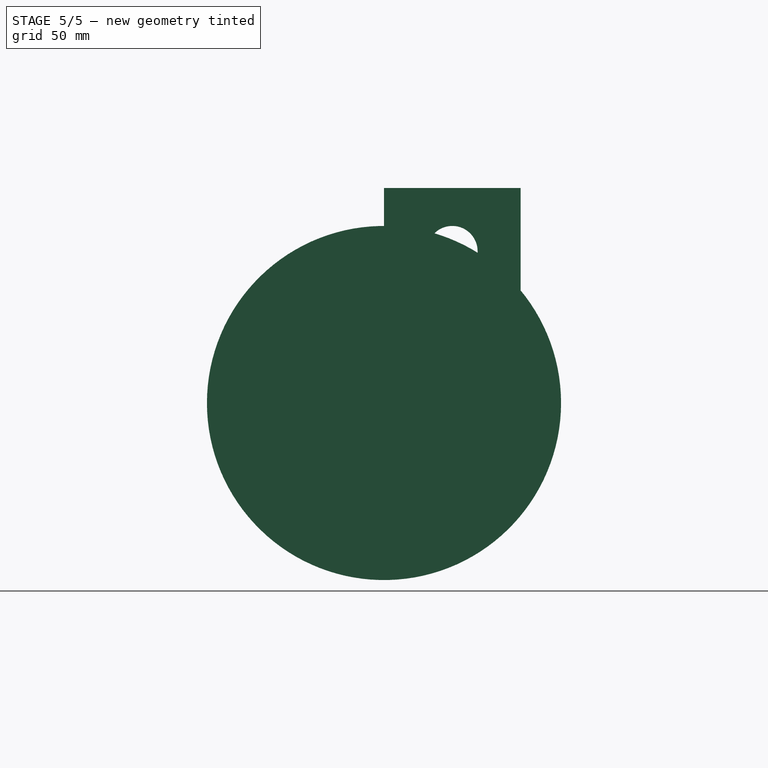
[diagram: stage 5 of 5 — right view after this stage's code; geometry added in this stage tinted green]
FEATURE [Sketcher::SketchObject] Sketch004
  MapMode = 5
  Placement = pos=(0,0,0) rot=(0.57735,0.57735,0.57735;2.0944rad)
  Support = -> [YZ_Plane]
  sketch-geometry (1):
    g0: Circle CenterX=27 CenterY=27.5 CenterZ=0 NormalX=0 NormalY=0 NormalZ=1 AngleXU=0 Radius=5
  constraints (3):
    c: Radius(g0) = 5
    c: DistanceX(g-1,g0) = 27
    c: DistanceY(g-1,g0) = 27.5
FEATURE [Sketcher::SketchObject] Sketch002
  MapMode = 5
  Support = -> [XY_Plane]
  sketch-geometry (8):
    g0: LineSegment StartX=26 StartY=46 StartZ=0 EndX=36 EndY=46 EndZ=0
    g1: LineSegment StartX=36 StartY=46 StartZ=0 EndX=36 EndY=8 EndZ=0
    g2: LineSegment StartX=36 StartY=8 StartZ=0 EndX=26 EndY=8 EndZ=0
    g3: LineSegment StartX=26 StartY=8 StartZ=0 EndX=26 EndY=46 EndZ=0
    g4: LineSegment StartX=28 StartY=43.6727 StartZ=0 EndX=34 EndY=43.6727 EndZ=0
    g5: LineSegment StartX=34 StartY=43.6727 StartZ=0 EndX=34 EndY=10.1592 EndZ=0
    g6: LineSegment StartX=34 StartY=10.1592 StartZ=0 EndX=28 EndY=10.1592 EndZ=0
    g7: LineSegment StartX=28 StartY=10.1592 StartZ=0 EndX=28 EndY=43.6727 EndZ=0
  constraints (22):
    c: Coincident(g0,g1)
    c: Coincident(g1,g2)
    c: Coincident(g2,g3)
    c: Coincident(g3,g0)
    c: Horizontal(g0)
    c: Horizontal(g2)
    c: Vertical(g1)
    c: Vertical(g3)
    c: DistanceY(g-1,g2) = 8
    c: DistanceY(g-1,g0) = 46
    c: DistanceX(g-1,g2) = 26
    c: DistanceX(g0,g1) = 10
    c: Coincident(g4,g5)
    c: Coincident(g5,g6)
    c: Coincident(g6,g7)
    c: Coincident(g7,g4)
    c: Horizontal(g4)
    c: Horizontal(g6)
    c: Vertical(g5)
    c: Vertical(g7)
    c: DistanceX(g2,g6) = 2
    c: DistanceX(g4,g0) = 2
FEATURE [Sketcher::SketchObject] Sketch
  MapMode = 5
  Support = -> [XY_Plane]
  sketch-geometry (8):
    g0: LineSegment StartX=0 StartY=0 StartZ=0 EndX=58 EndY=0 EndZ=0
    g1: LineSegment StartX=58 StartY=0 StartZ=0 EndX=58 EndY=54 EndZ=0
    g2: LineSegment StartX=58 StartY=54 StartZ=0 EndX=0 EndY=54 EndZ=0
    g3: LineSegment StartX=0 StartY=54 StartZ=0 EndX=0 EndY=0 EndZ=0
    g4: LineSegment StartX=26 StartY=46 StartZ=0 EndX=36 EndY=46 EndZ=0
    g5: LineSegment StartX=36 StartY=46 StartZ=0 EndX=36 EndY=8 EndZ=0
    g6: LineSegment StartX=36 StartY=8 StartZ=0 EndX=26 EndY=8 EndZ=0
    g7: LineSegment StartX=26 StartY=8 StartZ=0 EndX=26 EndY=46 EndZ=0
  constraints (23):
    c: Coincident(g0,g1)
    c: Coincident(g1,g2)
    c: Coincident(g2,g3)
    c: Coincident(g3,g0)
    c: Horizontal(g0)
    c: Horizontal(g2)
    c: Vertical(g1)
    c: Vertical(g3)
    c: Coincident(g0,g-1)
    c: Distance(g3) = 54
    c: Distance(g2) = 58
    c: Coincident(g4,g5)
    c: Coincident(g5,g6)
    c: Coincident(g6,g7)
    c: Coincident(g7,g4)
    c: Horizontal(g4)
    c: Horizontal(g6)
    c: Vertical(g5)
    c: Vertical(g7)
    c: DistanceX(g-1,g6) = 26
    c: DistanceX(g6,g5) = 10
    c: DistanceY(g-1,g4) = 46
    c: DistanceY(g-1,g6) = 8
FEATURE [Sketcher::SketchObject] Sketch005
  MapMode = 5
  Placement = pos=(0,0,0) rot=(0.57735,0.57735,0.57735;2.0944rad)
  Support = -> [YZ_Plane]
  sketch-geometry (1):
    g0: Circle CenterX=27 CenterY=27.5 CenterZ=0 NormalX=0 NormalY=0 NormalZ=1 AngleXU=0 Radius=3
  constraints (3):
    c: DistanceX(g-1,g0) = 27
    c: DistanceY(g-1,g0) = 27.5
    c: Radius(g0) = 3
FEATURE [PartDesign::Pad] Pad
  Length = 15
  Length2 = 100
  Profile = -> Sketch
  Type = 0
FEATURE [Sketcher::SketchObject] Sketch003
  MapMode = 5
  Support = -> [XY_Plane]
  sketch-geometry (8):
    g0: LineSegment StartX=-15 StartY=0 StartZ=0 EndX=-15 EndY=14.5 EndZ=0
    g1: LineSegment StartX=-15 StartY=54 StartZ=0 EndX=-15 EndY=39.5 EndZ=0
    g2: LineSegment StartX=-10 StartY=42 StartZ=0 EndX=-10 EndY=12 EndZ=0
    g3: LineSegment StartX=-10 StartY=42 StartZ=0 EndX=-15 EndY=39.5 EndZ=0
    g4: LineSegment StartX=-15 StartY=14.5 StartZ=0 EndX=-10 EndY=12 EndZ=0
    g5: LineSegment StartX=0 StartY=0 StartZ=0 EndX=-15 EndY=0 EndZ=0
    g6: LineSegment StartX=-15 StartY=54 StartZ=0 EndX=0 EndY=54 EndZ=0
    g7: LineSegment StartX=0 StartY=54 StartZ=0 EndX=0 EndY=0 EndZ=0
  constraints (18):
    c: Vertical(g0)
    c: Vertical(g1)
    c: Vertical(g1,g0)
    c: Vertical(g2)
    c: DistanceY(g-1,g2) = 12
    c: DistanceX(g0,g2) = 5
    c: Coincident(g3,g2)
    c: Coincident(g3,g1)
    c: Coincident(g4,g0)
    c: Coincident(g4,g2)
    c: DistanceX(g1,g-1) = 15
    c: DistanceY(g0,g-1) = 0
    c: Coincident(g6,g7)
    c: Coincident(g7,g5)
    c: Horizontal(g5)
    c: Horizontal(g6)
    c: Vertical(g7)
    c: Coincident(g5,g-1)
FEATURE [PartDesign::Pad] Pad001
  BaseFeature = -> Pad
  Length = 40
  Length2 = 100
  Profile = -> Sketch003
  Type = 0
FEATURE [PartDesign::Pad] Pad002
  BaseFeature = -> Pad001
  Length = 10
  Length2 = 100
  Profile = -> Sketch002
  Type = 0
FEATURE [PartDesign::Pocket] Pocket
  BaseFeature = -> Pad002
  Length = 5
  Length2 = 100
  Profile = -> Sketch004
  Type = 0
FEATURE [PartDesign::Pocket] Pocket001
  BaseFeature = -> Pocket
  Length = 10
  Length2 = 100
  Profile = -> Sketch005
  Type = 0
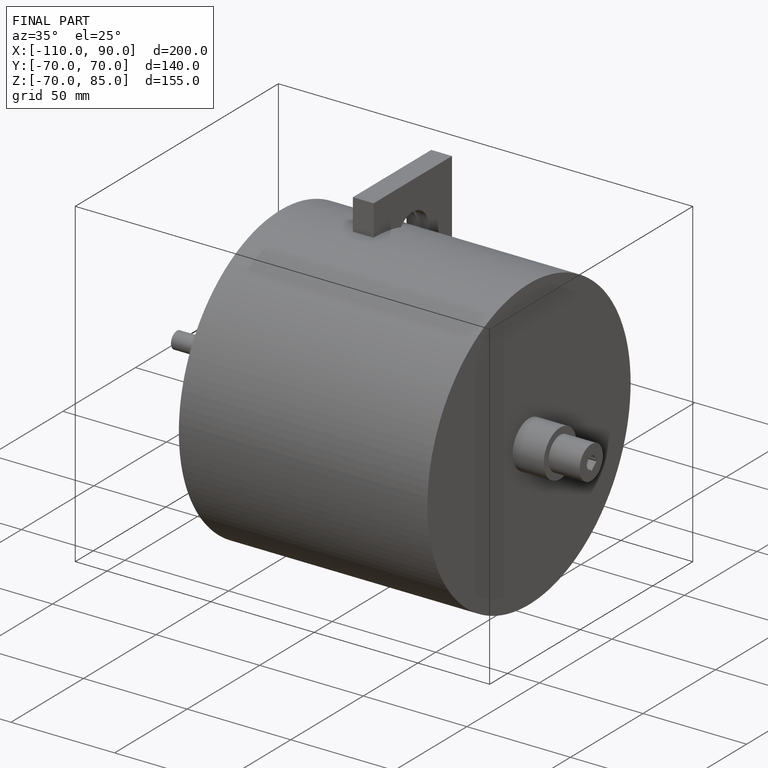
[diagram: finished part — iso view with bounding-box wireframe]
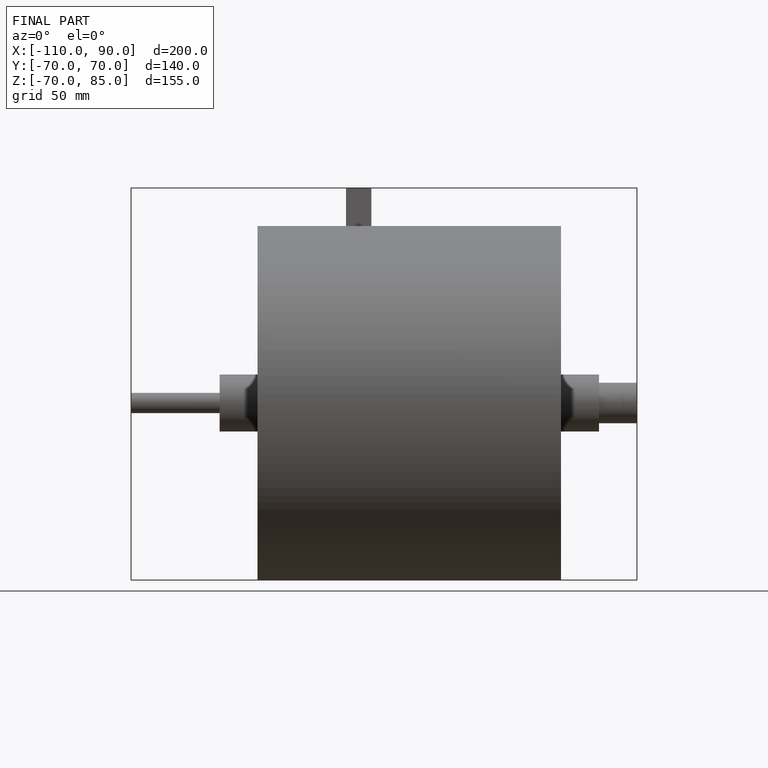
[diagram: finished part — front view with bounding-box wireframe]
